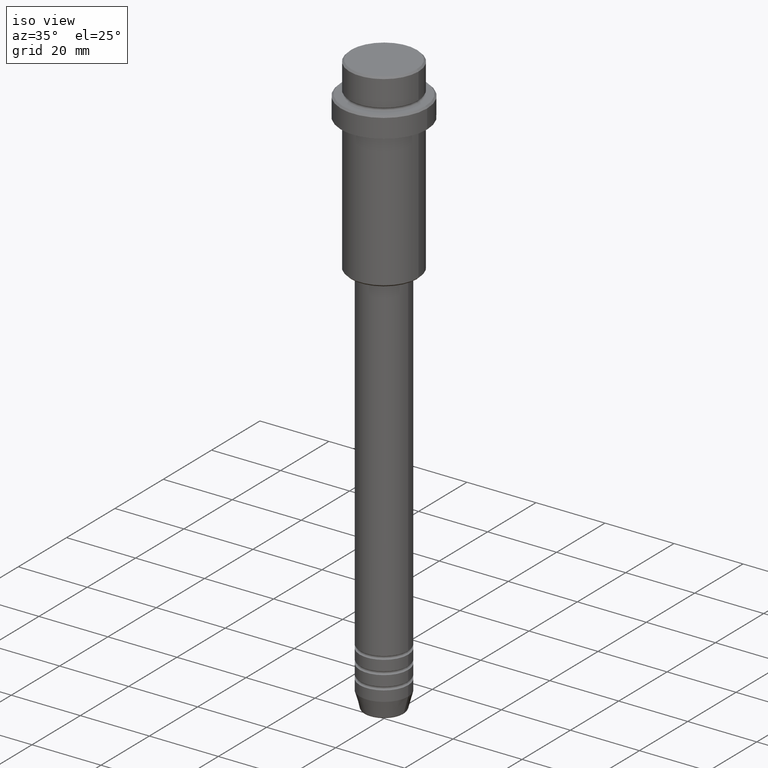
[diagram: clean part render]
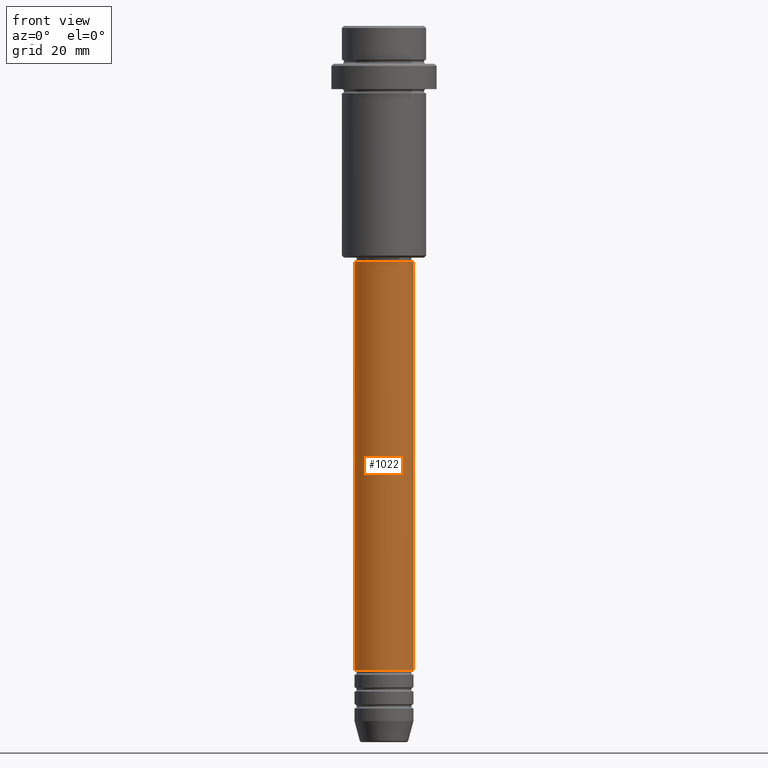
[diagram: tour spotlight — one face highlighted and labeled with its STEP entity id]
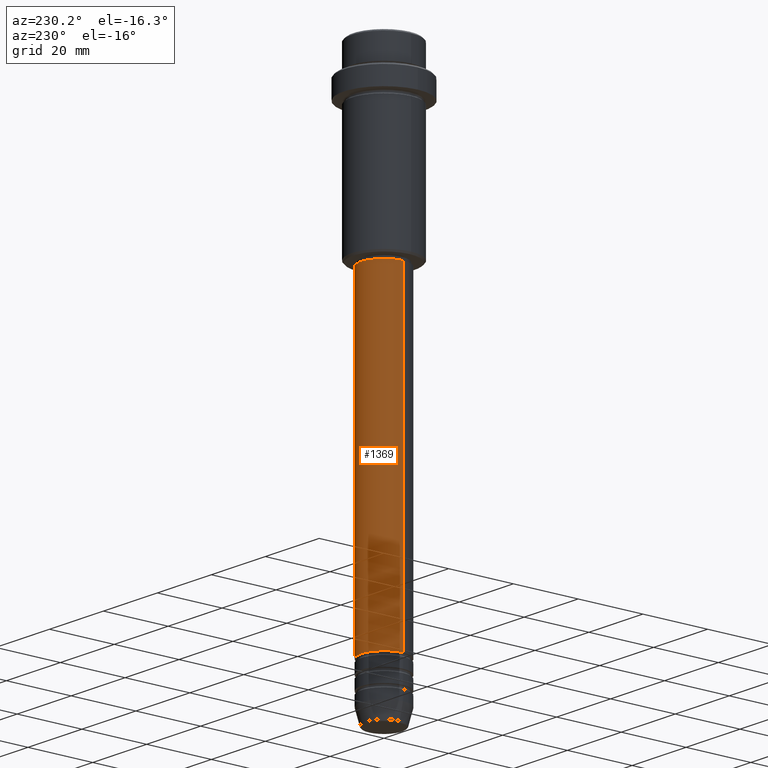
[diagram: tour spotlight — one face highlighted and labeled with its STEP entity id]
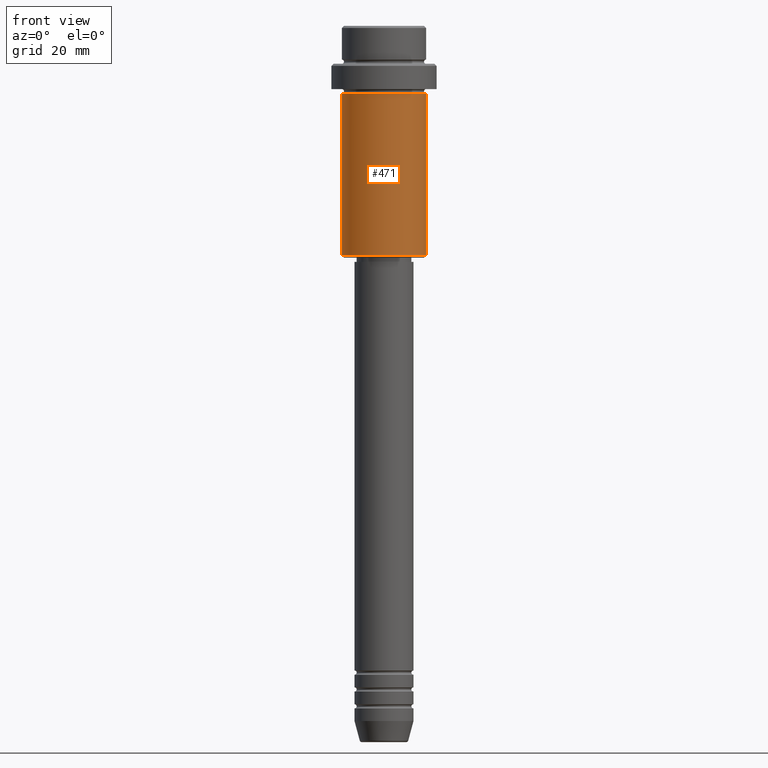
[diagram: tour spotlight — one face highlighted and labeled with its STEP entity id]
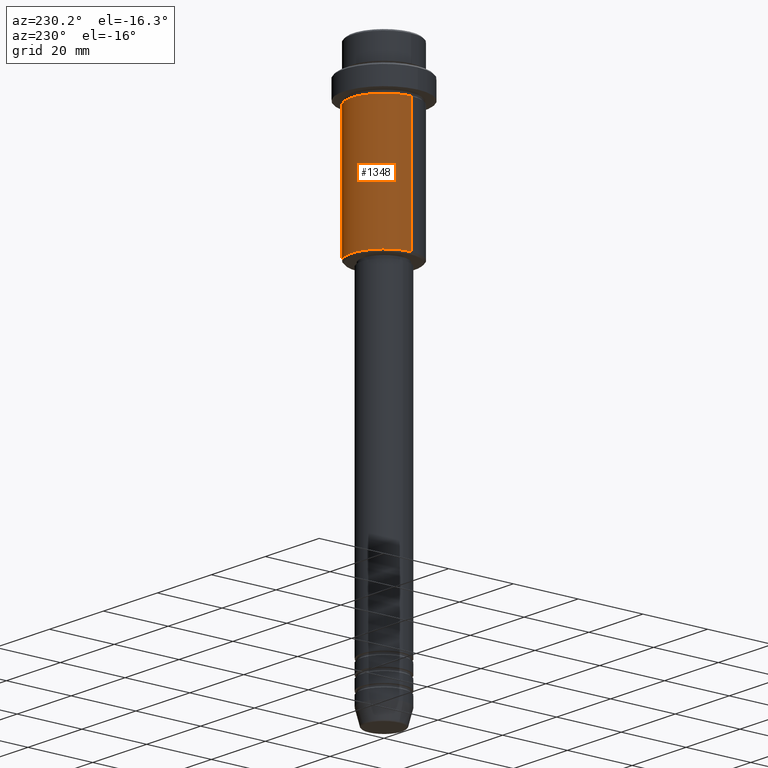
[diagram: tour spotlight — one face highlighted and labeled with its STEP entity id]
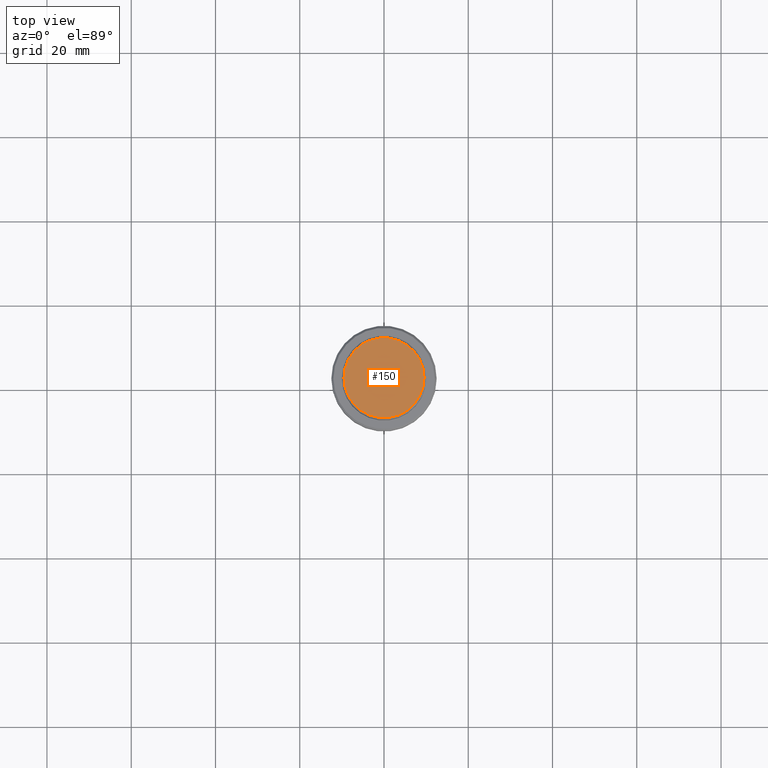
[diagram: tour spotlight — one face highlighted and labeled with its STEP entity id]
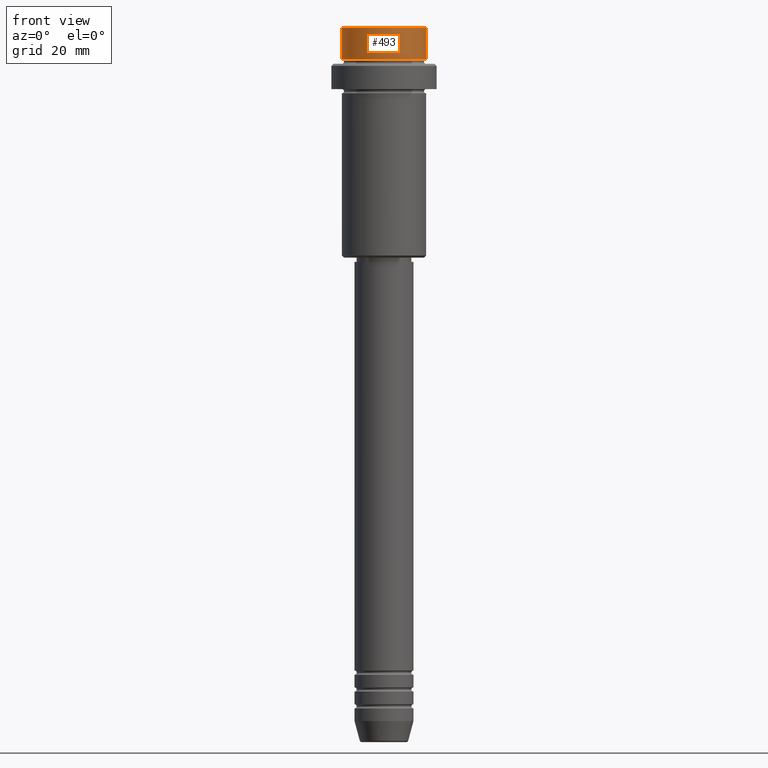
[diagram: tour spotlight — one face highlighted and labeled with its STEP entity id]
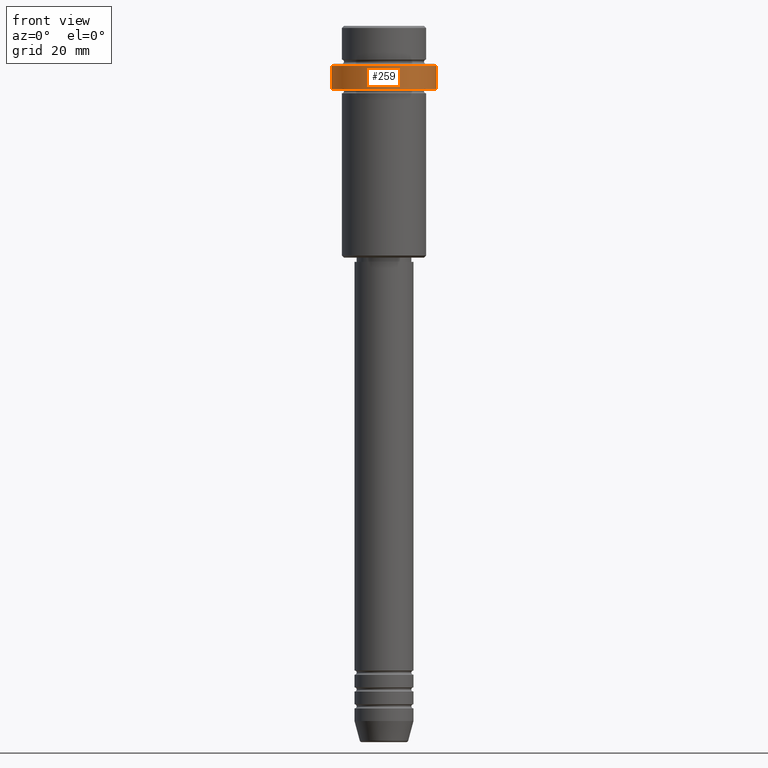
[diagram: tour spotlight — one face highlighted and labeled with its STEP entity id]
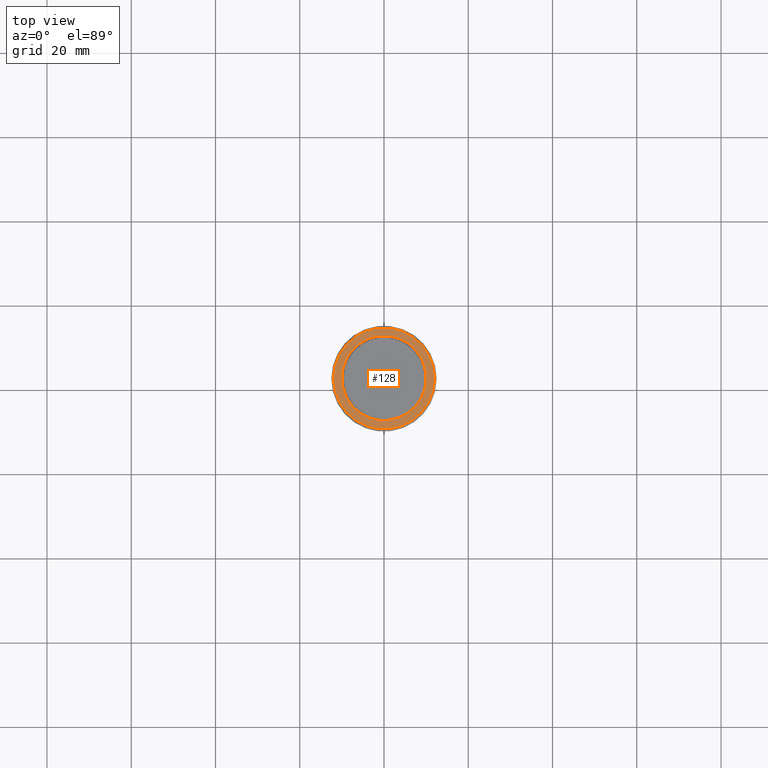
[diagram: tour spotlight — one face highlighted and labeled with its STEP entity id]
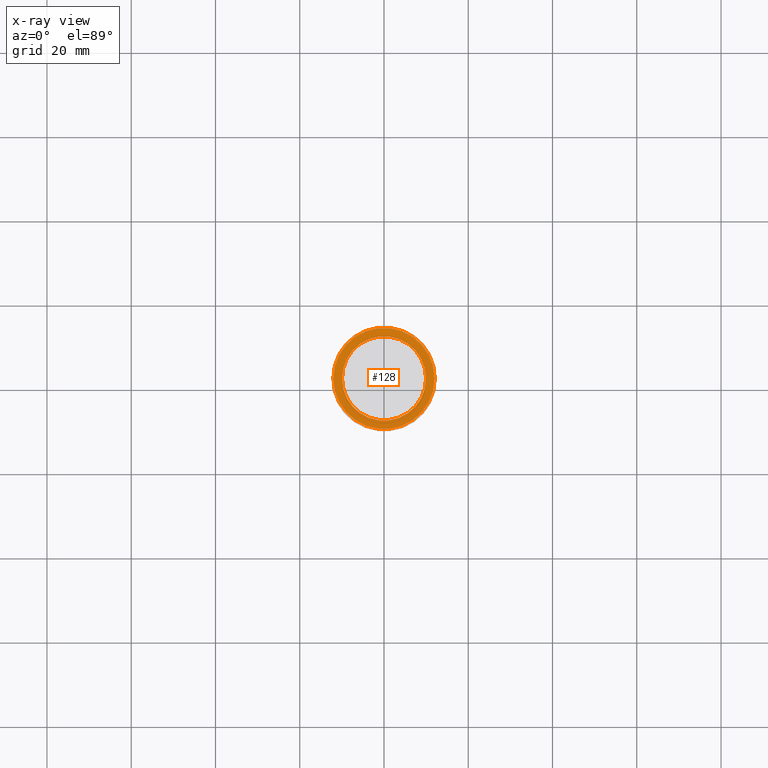
[diagram: x-ray of the same camera — body ghosted, this tour face saturated]
A machine part: a face-by-face anatomy tour. The part has 52 B-rep faces; the first image is the clean iso view, then the 8 largest visible faces are spotlighted one at a time (largest first), each with its STEP entity span.

Face 1 — front view, entity #1022. In plain terms, the highlighted cylindrical surface (edge-blend (fillet) strip) has radius 7 mm, axis along (-0, -0, 1).
Definition (entity closure, byte-faithful):
#81 = EDGE_CURVE ( 'NONE', #1398, #83, #285, .T. ) ;
#83 = VERTEX_POINT ( 'NONE', #269 ) ;
#140 = ORIENTED_EDGE ( 'NONE', *, *, #81, .T. ) ;
#152 = CARTESIAN_POINT ( 'NONE',  ( 0.000000000000000000, 0.000000000000000000, 0.000000000000000000 ) ) ;
#228 = AXIS2_PLACEMENT_3D ( 'NONE', #152, #1242, #710 ) ;
#251 = DIRECTION ( 'NONE',  ( -0.000000000000000000, -0.000000000000000000, 1.000000000000000000 ) ) ;
#263 = FACE_OUTER_BOUND ( 'NONE', #329, .T. ) ;
#269 = CARTESIAN_POINT ( 'NONE',  ( 7.000000000000000000, 0.000000000000000000, -55.99999999999998579 ) ) ;
#285 = LINE ( 'NONE', #1243, #1269 ) ;
#307 = DIRECTION ( 'NONE',  ( -0.000000000000000000, -0.000000000000000000, 1.000000000000000000 ) ) ;
#313 = ORIENTED_EDGE ( 'NONE', *, *, #548, .F. ) ;
#323 = AXIS2_PLACEMENT_3D ( 'NONE', #1281, #307, #738 ) ;
#329 = EDGE_LOOP ( 'NONE', ( #313, #606, #140, #1315 ) ) ;
#548 = EDGE_CURVE ( 'NONE', #1390, #1312, #938, .T. ) ;
#576 = EDGE_CURVE ( 'NONE', #1312, #83, #579, .T. ) ;
#579 = CIRCLE ( 'NONE', #323, 7.000000000000000000 ) ;
#596 = DIRECTION ( 'NONE',  ( -0.000000000000000000, -0.000000000000000000, 1.000000000000000000 ) ) ;
#599 = EDGE_CURVE ( 'NONE', #1390, #1398, #678, .T. ) ;
#606 = ORIENTED_EDGE ( 'NONE', *, *, #599, .T. ) ;
#673 = CARTESIAN_POINT ( 'NONE',  ( -7.000000000000000000, 8.572527594031473190E-16, -55.99999999999998579 ) ) ;
#675 = DIRECTION ( 'NONE',  ( 1.000000000000000000, 0.000000000000000000, 0.000000000000000000 ) ) ;
#678 = CIRCLE ( 'NONE', #1154, 7.000000000000000000 ) ;
#690 = CYLINDRICAL_SURFACE ( 'NONE', #228, 7.000000000000000000 ) ;
#710 = DIRECTION ( 'NONE',  ( 1.000000000000000000, 0.000000000000000000, 0.000000000000000000 ) ) ;
#738 = DIRECTION ( 'NONE',  ( 1.000000000000000000, 0.000000000000000000, 0.000000000000000000 ) ) ;
#785 = CARTESIAN_POINT ( 'NONE',  ( 0.000000000000000000, 0.000000000000000000, -152.9999999999998579 ) ) ;
#826 = CARTESIAN_POINT ( 'NONE',  ( -7.000000000000000000, 8.572527594031473190E-16, 0.000000000000000000 ) ) ;
#938 = LINE ( 'NONE', #826, #1293 ) ;
#1022 = ADVANCED_FACE ( 'NONE', ( #263 ), #690, .T. ) ;
#1128 = CARTESIAN_POINT ( 'NONE',  ( 7.000000000000000000, 0.000000000000000000, -152.9999999999998579 ) ) ;
#1154 = AXIS2_PLACEMENT_3D ( 'NONE', #785, #251, #675 ) ;
#1242 = DIRECTION ( 'NONE',  ( -0.000000000000000000, -0.000000000000000000, 1.000000000000000000 ) ) ;
#1243 = CARTESIAN_POINT ( 'NONE',  ( 7.000000000000000000, 0.000000000000000000, 0.000000000000000000 ) ) ;
#1269 = VECTOR ( 'NONE', #596, 1000.000000000000000 ) ;
#1272 = DIRECTION ( 'NONE',  ( -0.000000000000000000, -0.000000000000000000, 1.000000000000000000 ) ) ;
#1281 = CARTESIAN_POINT ( 'NONE',  ( 0.000000000000000000, 0.000000000000000000, -55.99999999999998579 ) ) ;
#1293 = VECTOR ( 'NONE', #1272, 1000.000000000000000 ) ;
#1312 = VERTEX_POINT ( 'NONE', #673 ) ;
#1315 = ORIENTED_EDGE ( 'NONE', *, *, #576, .F. ) ;
#1354 = CARTESIAN_POINT ( 'NONE',  ( -7.000000000000000000, 8.572527594031473190E-16, -152.9999999999998579 ) ) ;
#1390 = VERTEX_POINT ( 'NONE', #1354 ) ;
#1398 = VERTEX_POINT ( 'NONE', #1128 ) ;

Face 2 — auxiliary view, entity #1369. In plain terms, the highlighted cylindrical surface (edge-blend (fillet) strip) has radius 7 mm, axis along (-0, -0, 1).
Definition (entity closure, byte-faithful):
#16 = DIRECTION ( 'NONE',  ( 1.000000000000000000, 0.000000000000000000, 0.000000000000000000 ) ) ;
#53 = EDGE_CURVE ( 'NONE', #83, #1312, #717, .T. ) ;
#81 = EDGE_CURVE ( 'NONE', #1398, #83, #285, .T. ) ;
#83 = VERTEX_POINT ( 'NONE', #269 ) ;
#104 = AXIS2_PLACEMENT_3D ( 'NONE', #995, #247, #16 ) ;
#111 = AXIS2_PLACEMENT_3D ( 'NONE', #1117, #1010, #573 ) ;
#240 = FACE_OUTER_BOUND ( 'NONE', #693, .T. ) ;
#247 = DIRECTION ( 'NONE',  ( -0.000000000000000000, -0.000000000000000000, 1.000000000000000000 ) ) ;
#269 = CARTESIAN_POINT ( 'NONE',  ( 7.000000000000000000, 0.000000000000000000, -55.99999999999998579 ) ) ;
#285 = LINE ( 'NONE', #1243, #1269 ) ;
#330 = ORIENTED_EDGE ( 'NONE', *, *, #81, .F. ) ;
#333 = ORIENTED_EDGE ( 'NONE', *, *, #53, .F. ) ;
#542 = CIRCLE ( 'NONE', #1344, 7.000000000000000000 ) ;
#548 = EDGE_CURVE ( 'NONE', #1390, #1312, #938, .T. ) ;
#573 = DIRECTION ( 'NONE',  ( 1.000000000000000000, 0.000000000000000000, 0.000000000000000000 ) ) ;
#596 = DIRECTION ( 'NONE',  ( -0.000000000000000000, -0.000000000000000000, 1.000000000000000000 ) ) ;
#642 = ORIENTED_EDGE ( 'NONE', *, *, #548, .T. ) ;
#673 = CARTESIAN_POINT ( 'NONE',  ( -7.000000000000000000, 8.572527594031473190E-16, -55.99999999999998579 ) ) ;
#693 = EDGE_LOOP ( 'NONE', ( #983, #642, #333, #330 ) ) ;
#708 = CYLINDRICAL_SURFACE ( 'NONE', #111, 7.000000000000000000 ) ;
#717 = CIRCLE ( 'NONE', #104, 7.000000000000000000 ) ;
#826 = CARTESIAN_POINT ( 'NONE',  ( -7.000000000000000000, 8.572527594031473190E-16, 0.000000000000000000 ) ) ;
#917 = DIRECTION ( 'NONE',  ( 1.000000000000000000, 0.000000000000000000, 0.000000000000000000 ) ) ;
#938 = LINE ( 'NONE', #826, #1293 ) ;
#983 = ORIENTED_EDGE ( 'NONE', *, *, #1050, .T. ) ;
#995 = CARTESIAN_POINT ( 'NONE',  ( 0.000000000000000000, 0.000000000000000000, -55.99999999999998579 ) ) ;
#1010 = DIRECTION ( 'NONE',  ( -0.000000000000000000, -0.000000000000000000, 1.000000000000000000 ) ) ;
#1050 = EDGE_CURVE ( 'NONE', #1398, #1390, #542, .T. ) ;
#1117 = CARTESIAN_POINT ( 'NONE',  ( 0.000000000000000000, 0.000000000000000000, 0.000000000000000000 ) ) ;
#1128 = CARTESIAN_POINT ( 'NONE',  ( 7.000000000000000000, 0.000000000000000000, -152.9999999999998579 ) ) ;
#1131 = DIRECTION ( 'NONE',  ( -0.000000000000000000, -0.000000000000000000, 1.000000000000000000 ) ) ;
#1146 = CARTESIAN_POINT ( 'NONE',  ( 0.000000000000000000, 0.000000000000000000, -152.9999999999998579 ) ) ;
#1243 = CARTESIAN_POINT ( 'NONE',  ( 7.000000000000000000, 0.000000000000000000, 0.000000000000000000 ) ) ;
#1269 = VECTOR ( 'NONE', #596, 1000.000000000000000 ) ;
#1272 = DIRECTION ( 'NONE',  ( -0.000000000000000000, -0.000000000000000000, 1.000000000000000000 ) ) ;
#1293 = VECTOR ( 'NONE', #1272, 1000.000000000000000 ) ;
#1312 = VERTEX_POINT ( 'NONE', #673 ) ;
#1344 = AXIS2_PLACEMENT_3D ( 'NONE', #1146, #1131, #917 ) ;
#1354 = CARTESIAN_POINT ( 'NONE',  ( -7.000000000000000000, 8.572527594031473190E-16, -152.9999999999998579 ) ) ;
#1369 = ADVANCED_FACE ( 'NONE', ( #240 ), #708, .T. ) ;
#1390 = VERTEX_POINT ( 'NONE', #1354 ) ;
#1398 = VERTEX_POINT ( 'NONE', #1128 ) ;

Face 3 — front view, entity #471. In plain terms, the highlighted cylindrical surface (partial cylindrical patch) has radius 10 mm, axis along (-0, -0, 1).
Definition (entity closure, byte-faithful):
#66 = CARTESIAN_POINT ( 'NONE',  ( 0.000000000000000000, 0.000000000000000000, 0.000000000000000000 ) ) ;
#91 = EDGE_CURVE ( 'NONE', #781, #1068, #320, .T. ) ;
#114 = DIRECTION ( 'NONE',  ( -0.000000000000000000, -0.000000000000000000, 1.000000000000000000 ) ) ;
#161 = CARTESIAN_POINT ( 'NONE',  ( 0.000000000000000000, 0.000000000000000000, -54.49999999999994316 ) ) ;
#164 = DIRECTION ( 'NONE',  ( 1.000000000000000000, 0.000000000000000000, 0.000000000000000000 ) ) ;
#168 = LINE ( 'NONE', #1239, #1179 ) ;
#188 = DIRECTION ( 'NONE',  ( -0.000000000000000000, -0.000000000000000000, 1.000000000000000000 ) ) ;
#191 = EDGE_LOOP ( 'NONE', ( #198, #410, #1225, #588 ) ) ;
#198 = ORIENTED_EDGE ( 'NONE', *, *, #828, .F. ) ;
#203 = VECTOR ( 'NONE', #114, 1000.000000000000000 ) ;
#223 = AXIS2_PLACEMENT_3D ( 'NONE', #161, #295, #728 ) ;
#241 = VERTEX_POINT ( 'NONE', #468 ) ;
#295 = DIRECTION ( 'NONE',  ( -0.000000000000000000, -0.000000000000000000, 1.000000000000000000 ) ) ;
#316 = DIRECTION ( 'NONE',  ( 1.000000000000000000, 0.000000000000000000, 0.000000000000000000 ) ) ;
#320 = CIRCLE ( 'NONE', #223, 10.00000000000000000 ) ;
#356 = CARTESIAN_POINT ( 'NONE',  ( -10.00000000000000000, 1.224646799147353256E-15, -16.00000000000000000 ) ) ;
#372 = AXIS2_PLACEMENT_3D ( 'NONE', #66, #188, #316 ) ;
#410 = ORIENTED_EDGE ( 'NONE', *, *, #91, .T. ) ;
#468 = CARTESIAN_POINT ( 'NONE',  ( 10.00000000000000000, 0.000000000000000000, -16.00000000000000000 ) ) ;
#471 = ADVANCED_FACE ( 'NONE', ( #567 ), #704, .T. ) ;
#489 = CARTESIAN_POINT ( 'NONE',  ( 10.00000000000000000, 0.000000000000000000, -54.49999999999994316 ) ) ;
#507 = CARTESIAN_POINT ( 'NONE',  ( -10.00000000000000000, 1.224646799147353256E-15, -54.49999999999994316 ) ) ;
#516 = CIRCLE ( 'NONE', #1316, 10.00000000000000000 ) ;
#563 = EDGE_CURVE ( 'NONE', #1068, #241, #168, .T. ) ;
#567 = FACE_OUTER_BOUND ( 'NONE', #191, .T. ) ;
#588 = ORIENTED_EDGE ( 'NONE', *, *, #622, .F. ) ;
#622 = EDGE_CURVE ( 'NONE', #1303, #241, #516, .T. ) ;
#660 = LINE ( 'NONE', #1099, #203 ) ;
#704 = CYLINDRICAL_SURFACE ( 'NONE', #372, 10.00000000000000000 ) ;
#707 = DIRECTION ( 'NONE',  ( -0.000000000000000000, -0.000000000000000000, 1.000000000000000000 ) ) ;
#728 = DIRECTION ( 'NONE',  ( -1.000000000000000000, 0.000000000000000000, 0.000000000000000000 ) ) ;
#781 = VERTEX_POINT ( 'NONE', #507 ) ;
#828 = EDGE_CURVE ( 'NONE', #781, #1303, #660, .T. ) ;
#1068 = VERTEX_POINT ( 'NONE', #489 ) ;
#1099 = CARTESIAN_POINT ( 'NONE',  ( -10.00000000000000000, 1.224646799147353256E-15, 0.000000000000000000 ) ) ;
#1145 = DIRECTION ( 'NONE',  ( -0.000000000000000000, -0.000000000000000000, 1.000000000000000000 ) ) ;
#1179 = VECTOR ( 'NONE', #707, 1000.000000000000000 ) ;
#1185 = CARTESIAN_POINT ( 'NONE',  ( 0.000000000000000000, 0.000000000000000000, -16.00000000000000000 ) ) ;
#1225 = ORIENTED_EDGE ( 'NONE', *, *, #563, .T. ) ;
#1239 = CARTESIAN_POINT ( 'NONE',  ( 10.00000000000000000, 0.000000000000000000, 0.000000000000000000 ) ) ;
#1303 = VERTEX_POINT ( 'NONE', #356 ) ;
#1316 = AXIS2_PLACEMENT_3D ( 'NONE', #1185, #1145, #164 ) ;

Face 4 — auxiliary view, entity #1348. In plain terms, the highlighted cylindrical surface (partial cylindrical patch) has radius 10 mm, axis along (-0, -0, 1).
Definition (entity closure, byte-faithful):
#3 = DIRECTION ( 'NONE',  ( -0.000000000000000000, -0.000000000000000000, 1.000000000000000000 ) ) ;
#60 = AXIS2_PLACEMENT_3D ( 'NONE', #413, #635, #1172 ) ;
#114 = DIRECTION ( 'NONE',  ( -0.000000000000000000, -0.000000000000000000, 1.000000000000000000 ) ) ;
#162 = EDGE_CURVE ( 'NONE', #1068, #781, #718, .T. ) ;
#168 = LINE ( 'NONE', #1239, #1179 ) ;
#203 = VECTOR ( 'NONE', #114, 1000.000000000000000 ) ;
#241 = VERTEX_POINT ( 'NONE', #468 ) ;
#347 = AXIS2_PLACEMENT_3D ( 'NONE', #1302, #3, #440 ) ;
#356 = CARTESIAN_POINT ( 'NONE',  ( -10.00000000000000000, 1.224646799147353256E-15, -16.00000000000000000 ) ) ;
#362 = DIRECTION ( 'NONE',  ( -1.000000000000000000, 0.000000000000000000, 0.000000000000000000 ) ) ;
#413 = CARTESIAN_POINT ( 'NONE',  ( 0.000000000000000000, 0.000000000000000000, -16.00000000000000000 ) ) ;
#423 = ORIENTED_EDGE ( 'NONE', *, *, #828, .T. ) ;
#440 = DIRECTION ( 'NONE',  ( 1.000000000000000000, 0.000000000000000000, 0.000000000000000000 ) ) ;
#468 = CARTESIAN_POINT ( 'NONE',  ( 10.00000000000000000, 0.000000000000000000, -16.00000000000000000 ) ) ;
#472 = AXIS2_PLACEMENT_3D ( 'NONE', #1106, #561, #362 ) ;
#489 = CARTESIAN_POINT ( 'NONE',  ( 10.00000000000000000, 0.000000000000000000, -54.49999999999994316 ) ) ;
#507 = CARTESIAN_POINT ( 'NONE',  ( -10.00000000000000000, 1.224646799147353256E-15, -54.49999999999994316 ) ) ;
#510 = EDGE_LOOP ( 'NONE', ( #674, #423, #1062, #742 ) ) ;
#545 = FACE_OUTER_BOUND ( 'NONE', #510, .T. ) ;
#561 = DIRECTION ( 'NONE',  ( -0.000000000000000000, -0.000000000000000000, 1.000000000000000000 ) ) ;
#563 = EDGE_CURVE ( 'NONE', #1068, #241, #168, .T. ) ;
#581 = CIRCLE ( 'NONE', #60, 10.00000000000000000 ) ;
#635 = DIRECTION ( 'NONE',  ( -0.000000000000000000, -0.000000000000000000, 1.000000000000000000 ) ) ;
#660 = LINE ( 'NONE', #1099, #203 ) ;
#674 = ORIENTED_EDGE ( 'NONE', *, *, #162, .T. ) ;
#707 = DIRECTION ( 'NONE',  ( -0.000000000000000000, -0.000000000000000000, 1.000000000000000000 ) ) ;
#718 = CIRCLE ( 'NONE', #472, 10.00000000000000000 ) ;
#742 = ORIENTED_EDGE ( 'NONE', *, *, #563, .F. ) ;
#781 = VERTEX_POINT ( 'NONE', #507 ) ;
#828 = EDGE_CURVE ( 'NONE', #781, #1303, #660, .T. ) ;
#982 = CYLINDRICAL_SURFACE ( 'NONE', #347, 10.00000000000000000 ) ;
#1062 = ORIENTED_EDGE ( 'NONE', *, *, #1142, .F. ) ;
#1068 = VERTEX_POINT ( 'NONE', #489 ) ;
#1099 = CARTESIAN_POINT ( 'NONE',  ( -10.00000000000000000, 1.224646799147353256E-15, 0.000000000000000000 ) ) ;
#1106 = CARTESIAN_POINT ( 'NONE',  ( 0.000000000000000000, 0.000000000000000000, -54.49999999999994316 ) ) ;
#1142 = EDGE_CURVE ( 'NONE', #241, #1303, #581, .T. ) ;
#1172 = DIRECTION ( 'NONE',  ( 1.000000000000000000, 0.000000000000000000, 0.000000000000000000 ) ) ;
#1179 = VECTOR ( 'NONE', #707, 1000.000000000000000 ) ;
#1239 = CARTESIAN_POINT ( 'NONE',  ( 10.00000000000000000, 0.000000000000000000, 0.000000000000000000 ) ) ;
#1302 = CARTESIAN_POINT ( 'NONE',  ( 0.000000000000000000, 0.000000000000000000, 0.000000000000000000 ) ) ;
#1303 = VERTEX_POINT ( 'NONE', #356 ) ;
#1348 = ADVANCED_FACE ( 'NONE', ( #545 ), #982, .T. ) ;

Face 5 — top view, entity #150. In plain terms, the highlighted planar face has unit normal (0, -0, 1).
Definition (entity closure, byte-faithful):
#13 = DIRECTION ( 'NONE',  ( -0.000000000000000000, -0.000000000000000000, 1.000000000000000000 ) ) ;
#36 = CARTESIAN_POINT ( 'NONE',  ( 0.000000000000000000, 0.000000000000000000, 0.000000000000000000 ) ) ;
#126 = DIRECTION ( 'NONE',  ( 1.000000000000000000, 0.000000000000000000, 0.000000000000000000 ) ) ;
#150 = ADVANCED_FACE ( 'NONE', ( #1331 ), #226, .T. ) ;
#226 = PLANE ( 'NONE',  #827 ) ;
#246 = DIRECTION ( 'NONE',  ( 0.000000000000000000, -0.000000000000000000, 1.000000000000000000 ) ) ;
#300 = EDGE_CURVE ( 'NONE', #945, #1075, #697, .T. ) ;
#396 = DIRECTION ( 'NONE',  ( 1.000000000000000000, 0.000000000000000000, 0.000000000000000000 ) ) ;
#590 = EDGE_CURVE ( 'NONE', #1075, #945, #1134, .T. ) ;
#672 = DIRECTION ( 'NONE',  ( 1.000000000000000000, 0.000000000000000000, 0.000000000000000000 ) ) ;
#697 = CIRCLE ( 'NONE', #927, 9.500000000000035527 ) ;
#719 = AXIS2_PLACEMENT_3D ( 'NONE', #1125, #13, #126 ) ;
#827 = AXIS2_PLACEMENT_3D ( 'NONE', #877, #246, #672 ) ;
#861 = ORIENTED_EDGE ( 'NONE', *, *, #300, .T. ) ;
#877 = CARTESIAN_POINT ( 'NONE',  ( 0.000000000000000000, 0.000000000000000000, 0.000000000000000000 ) ) ;
#927 = AXIS2_PLACEMENT_3D ( 'NONE', #36, #1040, #396 ) ;
#945 = VERTEX_POINT ( 'NONE', #1197 ) ;
#1027 = EDGE_LOOP ( 'NONE', ( #1372, #861 ) ) ;
#1035 = CARTESIAN_POINT ( 'NONE',  ( -9.500000000000035527, 0.000000000000000000, 0.000000000000000000 ) ) ;
#1040 = DIRECTION ( 'NONE',  ( -0.000000000000000000, -0.000000000000000000, 1.000000000000000000 ) ) ;
#1075 = VERTEX_POINT ( 'NONE', #1035 ) ;
#1125 = CARTESIAN_POINT ( 'NONE',  ( 0.000000000000000000, 0.000000000000000000, 0.000000000000000000 ) ) ;
#1134 = CIRCLE ( 'NONE', #719, 9.500000000000035527 ) ;
#1197 = CARTESIAN_POINT ( 'NONE',  ( 9.500000000000035527, 1.194030629168671442E-15, 0.000000000000000000 ) ) ;
#1331 = FACE_OUTER_BOUND ( 'NONE', #1027, .T. ) ;
#1372 = ORIENTED_EDGE ( 'NONE', *, *, #590, .T. ) ;

Face 6 — front view, entity #493. In plain terms, the highlighted cylindrical surface (partial cylindrical patch) has radius 10 mm, axis along (-0, -0, 1).
Definition (entity closure, byte-faithful):
#62 = DIRECTION ( 'NONE',  ( -0.000000000000000000, -0.000000000000000000, 1.000000000000000000 ) ) ;
#67 = DIRECTION ( 'NONE',  ( -0.000000000000000000, -0.000000000000000000, 1.000000000000000000 ) ) ;
#84 = CIRCLE ( 'NONE', #278, 9.999999999999998224 ) ;
#98 = ORIENTED_EDGE ( 'NONE', *, *, #1200, .F. ) ;
#119 = DIRECTION ( 'NONE',  ( 0.000000000000000000, 0.000000000000000000, -1.000000000000000000 ) ) ;
#125 = CARTESIAN_POINT ( 'NONE',  ( 9.999999999999998224, 0.000000000000000000, 0.000000000000000000 ) ) ;
#194 = DIRECTION ( 'NONE',  ( 1.000000000000000000, 0.000000000000000000, 0.000000000000000000 ) ) ;
#278 = AXIS2_PLACEMENT_3D ( 'NONE', #406, #62, #958 ) ;
#296 = VECTOR ( 'NONE', #874, 1000.000000000000000 ) ;
#334 = CARTESIAN_POINT ( 'NONE',  ( 0.000000000000000000, 0.000000000000000000, -0.4999999999999692468 ) ) ;
#345 = AXIS2_PLACEMENT_3D ( 'NONE', #787, #646, #194 ) ;
#365 = CYLINDRICAL_SURFACE ( 'NONE', #345, 9.999999999999998224 ) ;
#406 = CARTESIAN_POINT ( 'NONE',  ( 0.000000000000000000, 0.000000000000000000, -7.999999999999998224 ) ) ;
#416 = ORIENTED_EDGE ( 'NONE', *, *, #1116, .T. ) ;
#452 = AXIS2_PLACEMENT_3D ( 'NONE', #334, #119, #668 ) ;
#460 = FACE_OUTER_BOUND ( 'NONE', #1167, .T. ) ;
#477 = VERTEX_POINT ( 'NONE', #618 ) ;
#493 = ADVANCED_FACE ( 'NONE', ( #460 ), #365, .T. ) ;
#497 = VERTEX_POINT ( 'NONE', #1156 ) ;
#526 = CARTESIAN_POINT ( 'NONE',  ( 9.999999999999998224, 0.000000000000000000, -0.4999999999999692468 ) ) ;
#538 = LINE ( 'NONE', #125, #296 ) ;
#618 = CARTESIAN_POINT ( 'NONE',  ( -9.999999999999998224, 1.224646799147353059E-15, -7.999999999999998224 ) ) ;
#632 = VECTOR ( 'NONE', #67, 1000.000000000000000 ) ;
#646 = DIRECTION ( 'NONE',  ( -0.000000000000000000, -0.000000000000000000, 1.000000000000000000 ) ) ;
#668 = DIRECTION ( 'NONE',  ( 1.000000000000000000, 0.000000000000000000, 0.000000000000000000 ) ) ;
#731 = LINE ( 'NONE', #1055, #632 ) ;
#787 = CARTESIAN_POINT ( 'NONE',  ( 0.000000000000000000, 0.000000000000000000, 0.000000000000000000 ) ) ;
#808 = ORIENTED_EDGE ( 'NONE', *, *, #924, .T. ) ;
#832 = ORIENTED_EDGE ( 'NONE', *, *, #919, .T. ) ;
#874 = DIRECTION ( 'NONE',  ( -0.000000000000000000, -0.000000000000000000, 1.000000000000000000 ) ) ;
#919 = EDGE_CURVE ( 'NONE', #1104, #497, #1002, .T. ) ;
#924 = EDGE_CURVE ( 'NONE', #1098, #1104, #538, .T. ) ;
#934 = CARTESIAN_POINT ( 'NONE',  ( 9.999999999999998224, 0.000000000000000000, -7.999999999999998224 ) ) ;
#958 = DIRECTION ( 'NONE',  ( 1.000000000000000000, 0.000000000000000000, 0.000000000000000000 ) ) ;
#1002 = CIRCLE ( 'NONE', #452, 9.999999999999998224 ) ;
#1055 = CARTESIAN_POINT ( 'NONE',  ( -9.999999999999998224, 1.224646799147353059E-15, 0.000000000000000000 ) ) ;
#1098 = VERTEX_POINT ( 'NONE', #934 ) ;
#1104 = VERTEX_POINT ( 'NONE', #526 ) ;
#1116 = EDGE_CURVE ( 'NONE', #477, #1098, #84, .T. ) ;
#1156 = CARTESIAN_POINT ( 'NONE',  ( -9.999999999999998224, 1.224646799147353059E-15, -0.4999999999999692468 ) ) ;
#1167 = EDGE_LOOP ( 'NONE', ( #98, #416, #808, #832 ) ) ;
#1200 = EDGE_CURVE ( 'NONE', #477, #497, #731, .T. ) ;

Face 7 — front view, entity #259. In plain terms, the highlighted cylindrical surface (partial cylindrical patch) has radius 12.5 mm, axis along (-0, -0, 1).
Definition (entity closure, byte-faithful):
#4 = VERTEX_POINT ( 'NONE', #636 ) ;
#12 = EDGE_LOOP ( 'NONE', ( #1092, #302, #488, #752 ) ) ;
#37 = VECTOR ( 'NONE', #1148, 1000.000000000000000 ) ;
#122 = DIRECTION ( 'NONE',  ( 1.000000000000000000, 0.000000000000000000, 0.000000000000000000 ) ) ;
#197 = LINE ( 'NONE', #1282, #1137 ) ;
#231 = DIRECTION ( 'NONE',  ( -0.000000000000000000, -0.000000000000000000, 1.000000000000000000 ) ) ;
#259 = ADVANCED_FACE ( 'NONE', ( #897 ), #800, .T. ) ;
#277 = EDGE_CURVE ( 'NONE', #761, #1139, #1314, .T. ) ;
#287 = EDGE_CURVE ( 'NONE', #1139, #1382, #351, .T. ) ;
#302 = ORIENTED_EDGE ( 'NONE', *, *, #277, .T. ) ;
#351 = LINE ( 'NONE', #1258, #37 ) ;
#488 = ORIENTED_EDGE ( 'NONE', *, *, #287, .T. ) ;
#591 = DIRECTION ( 'NONE',  ( 1.000000000000000000, 0.000000000000000000, 0.000000000000000000 ) ) ;
#634 = AXIS2_PLACEMENT_3D ( 'NONE', #920, #1016, #591 ) ;
#636 = CARTESIAN_POINT ( 'NONE',  ( -12.50000000000000000, 1.530808498934191521E-15, -9.499999999999978684 ) ) ;
#692 = CARTESIAN_POINT ( 'NONE',  ( 12.50000000000000000, 0.000000000000000000, -9.499999999999978684 ) ) ;
#703 = CIRCLE ( 'NONE', #634, 12.50000000000000000 ) ;
#752 = ORIENTED_EDGE ( 'NONE', *, *, #1374, .T. ) ;
#761 = VERTEX_POINT ( 'NONE', #1163 ) ;
#763 = CARTESIAN_POINT ( 'NONE',  ( 0.000000000000000000, 0.000000000000000000, -15.00000000000000178 ) ) ;
#800 = CYLINDRICAL_SURFACE ( 'NONE', #1132, 12.50000000000000000 ) ;
#897 = FACE_OUTER_BOUND ( 'NONE', #12, .T. ) ;
#920 = CARTESIAN_POINT ( 'NONE',  ( 0.000000000000000000, 0.000000000000000000, -9.499999999999978684 ) ) ;
#987 = DIRECTION ( 'NONE',  ( 1.000000000000000000, 0.000000000000000000, 0.000000000000000000 ) ) ;
#1016 = DIRECTION ( 'NONE',  ( 0.000000000000000000, 0.000000000000000000, -1.000000000000000000 ) ) ;
#1061 = AXIS2_PLACEMENT_3D ( 'NONE', #763, #231, #987 ) ;
#1092 = ORIENTED_EDGE ( 'NONE', *, *, #1158, .F. ) ;
#1132 = AXIS2_PLACEMENT_3D ( 'NONE', #1317, #1211, #122 ) ;
#1137 = VECTOR ( 'NONE', #1184, 1000.000000000000000 ) ;
#1139 = VERTEX_POINT ( 'NONE', #1277 ) ;
#1148 = DIRECTION ( 'NONE',  ( -0.000000000000000000, -0.000000000000000000, 1.000000000000000000 ) ) ;
#1158 = EDGE_CURVE ( 'NONE', #761, #4, #197, .T. ) ;
#1163 = CARTESIAN_POINT ( 'NONE',  ( -12.50000000000000000, 1.530808498934191521E-15, -15.00000000000000178 ) ) ;
#1184 = DIRECTION ( 'NONE',  ( -0.000000000000000000, -0.000000000000000000, 1.000000000000000000 ) ) ;
#1211 = DIRECTION ( 'NONE',  ( -0.000000000000000000, -0.000000000000000000, 1.000000000000000000 ) ) ;
#1258 = CARTESIAN_POINT ( 'NONE',  ( 12.50000000000000000, 0.000000000000000000, 0.000000000000000000 ) ) ;
#1277 = CARTESIAN_POINT ( 'NONE',  ( 12.50000000000000000, 0.000000000000000000, -15.00000000000000178 ) ) ;
#1282 = CARTESIAN_POINT ( 'NONE',  ( -12.50000000000000000, 1.530808498934191521E-15, 0.000000000000000000 ) ) ;
#1314 = CIRCLE ( 'NONE', #1061, 12.50000000000000000 ) ;
#1317 = CARTESIAN_POINT ( 'NONE',  ( 0.000000000000000000, 0.000000000000000000, 0.000000000000000000 ) ) ;
#1374 = EDGE_CURVE ( 'NONE', #1382, #4, #703, .T. ) ;
#1382 = VERTEX_POINT ( 'NONE', #692 ) ;

Face 8 — top view, entity #128. An x-ray twin of the same camera follows (body ghosted, this face saturated) — the face is partly hidden behind the body. In plain terms, the highlighted planar face has unit normal (0, -0, 1).
Definition (entity closure, byte-faithful):
#23 = CARTESIAN_POINT ( 'NONE',  ( 12.00000000000001066, 1.500192328955508326E-15, -9.000000000000001776 ) ) ;
#24 = DIRECTION ( 'NONE',  ( 0.000000000000000000, -0.000000000000000000, 1.000000000000000000 ) ) ;
#65 = DIRECTION ( 'NONE',  ( 0.000000000000000000, 0.000000000000000000, -1.000000000000000000 ) ) ;
#121 = DIRECTION ( 'NONE',  ( 1.000000000000000000, 0.000000000000000000, 0.000000000000000000 ) ) ;
#127 = AXIS2_PLACEMENT_3D ( 'NONE', #1405, #886, #1305 ) ;
#128 = ADVANCED_FACE ( 'NONE', ( #1102, #238 ), #1231, .T. ) ;
#132 = AXIS2_PLACEMENT_3D ( 'NONE', #685, #1119, #144 ) ;
#138 = ORIENTED_EDGE ( 'NONE', *, *, #776, .T. ) ;
#144 = DIRECTION ( 'NONE',  ( 1.000000000000000000, 0.000000000000000000, 0.000000000000000000 ) ) ;
#238 = FACE_BOUND ( 'NONE', #617, .T. ) ;
#335 = VERTEX_POINT ( 'NONE', #1307 ) ;
#419 = EDGE_CURVE ( 'NONE', #1241, #932, #740, .T. ) ;
#421 = ORIENTED_EDGE ( 'NONE', *, *, #937, .T. ) ;
#458 = CARTESIAN_POINT ( 'NONE',  ( 0.000000000000000000, 0.000000000000000000, -9.000000000000001776 ) ) ;
#459 = CARTESIAN_POINT ( 'NONE',  ( -9.999999999999994671, 1.224646799147352665E-15, -9.000000000000001776 ) ) ;
#592 = VERTEX_POINT ( 'NONE', #459 ) ;
#604 = CIRCLE ( 'NONE', #797, 12.00000000000001066 ) ;
#612 = EDGE_LOOP ( 'NONE', ( #1297, #421 ) ) ;
#617 = EDGE_LOOP ( 'NONE', ( #868, #138 ) ) ;
#685 = CARTESIAN_POINT ( 'NONE',  ( 0.000000000000000000, 0.000000000000000000, -9.000000000000001776 ) ) ;
#740 = CIRCLE ( 'NONE', #127, 12.00000000000001066 ) ;
#743 = CIRCLE ( 'NONE', #132, 9.999999999999994671 ) ;
#776 = EDGE_CURVE ( 'NONE', #592, #335, #1021, .T. ) ;
#797 = AXIS2_PLACEMENT_3D ( 'NONE', #458, #900, #1414 ) ;
#841 = DIRECTION ( 'NONE',  ( 1.000000000000000000, 0.000000000000000000, 0.000000000000000000 ) ) ;
#868 = ORIENTED_EDGE ( 'NONE', *, *, #1006, .T. ) ;
#886 = DIRECTION ( 'NONE',  ( -0.000000000000000000, -0.000000000000000000, 1.000000000000000000 ) ) ;
#900 = DIRECTION ( 'NONE',  ( -0.000000000000000000, -0.000000000000000000, 1.000000000000000000 ) ) ;
#932 = VERTEX_POINT ( 'NONE', #23 ) ;
#937 = EDGE_CURVE ( 'NONE', #932, #1241, #604, .T. ) ;
#1006 = EDGE_CURVE ( 'NONE', #335, #592, #743, .T. ) ;
#1021 = CIRCLE ( 'NONE', #1409, 9.999999999999994671 ) ;
#1046 = CARTESIAN_POINT ( 'NONE',  ( 0.000000000000000000, 0.000000000000000000, -9.000000000000001776 ) ) ;
#1102 = FACE_OUTER_BOUND ( 'NONE', #612, .T. ) ;
#1109 = CARTESIAN_POINT ( 'NONE',  ( -12.00000000000001066, 0.000000000000000000, -9.000000000000001776 ) ) ;
#1119 = DIRECTION ( 'NONE',  ( 0.000000000000000000, 0.000000000000000000, -1.000000000000000000 ) ) ;
#1231 = PLANE ( 'NONE',  #1383 ) ;
#1241 = VERTEX_POINT ( 'NONE', #1109 ) ;
#1297 = ORIENTED_EDGE ( 'NONE', *, *, #419, .T. ) ;
#1305 = DIRECTION ( 'NONE',  ( 1.000000000000000000, 0.000000000000000000, 0.000000000000000000 ) ) ;
#1307 = CARTESIAN_POINT ( 'NONE',  ( 9.999999999999994671, 0.000000000000000000, -9.000000000000001776 ) ) ;
#1326 = CARTESIAN_POINT ( 'NONE',  ( 0.000000000000000000, 9.499999999999994671, -9.000000000000001776 ) ) ;
#1383 = AXIS2_PLACEMENT_3D ( 'NONE', #1326, #24, #121 ) ;
#1405 = CARTESIAN_POINT ( 'NONE',  ( 0.000000000000000000, 0.000000000000000000, -9.000000000000001776 ) ) ;
#1409 = AXIS2_PLACEMENT_3D ( 'NONE', #1046, #65, #841 ) ;
#1414 = DIRECTION ( 'NONE',  ( 1.000000000000000000, 0.000000000000000000, 0.000000000000000000 ) ) ;